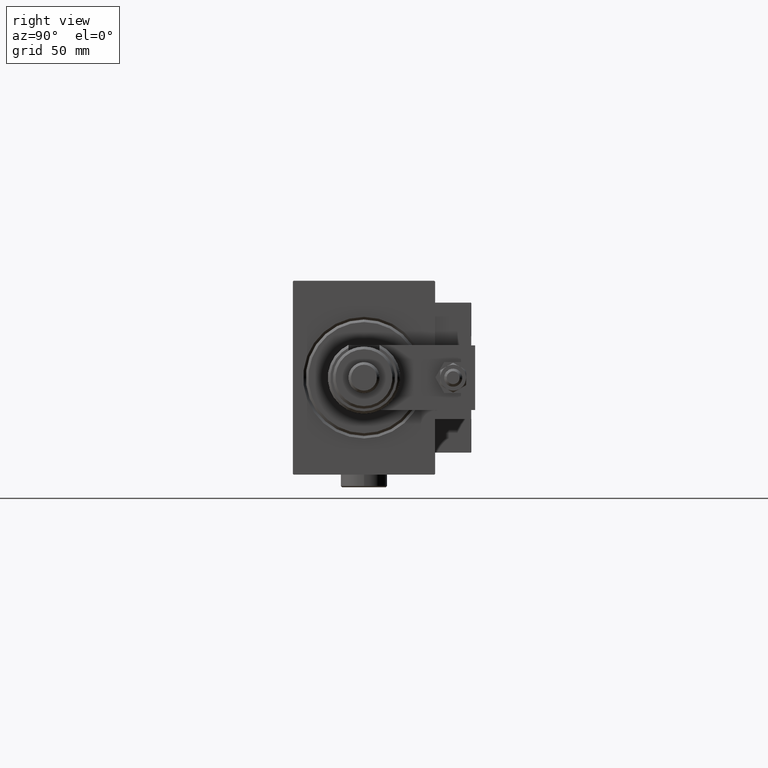
[diagram: clean part render]
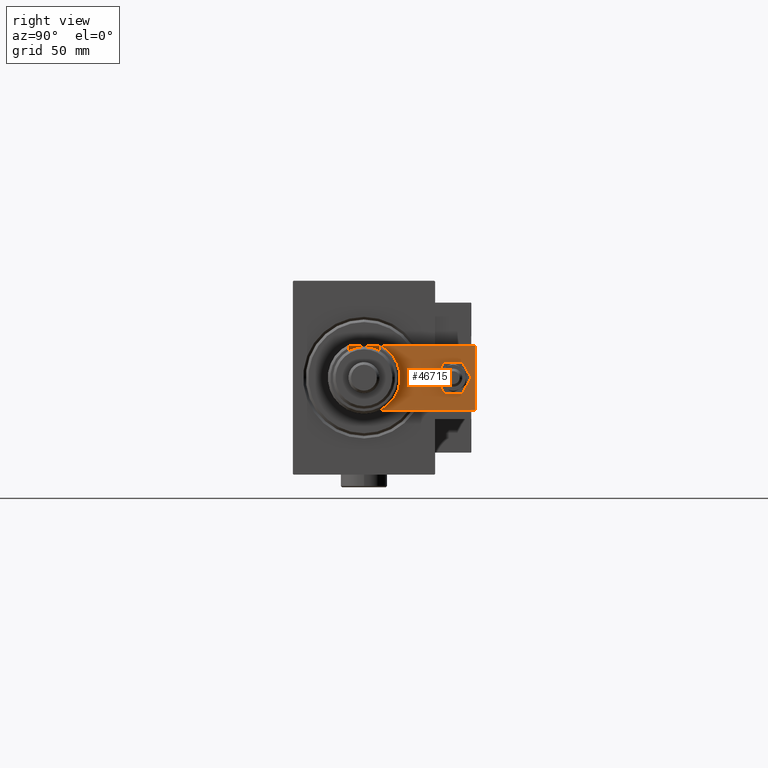
[diagram: same view with one face highlighted and labeled with its STEP entity id]
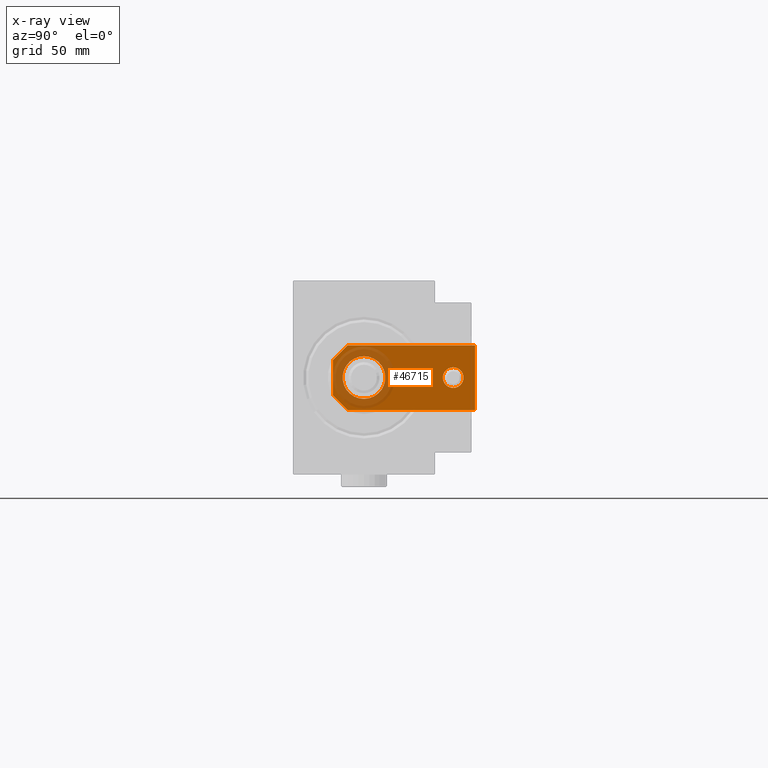
[diagram: x-ray of the same camera — body ghosted, the highlighted face saturated]
A machine part, right view. The second image highlights one B-rep face of the part: STEP entity #46715.
The next image is the same camera in x-ray: the body ghosted, the highlighted face saturated — about 22% of this face is hidden behind the body in this view.
In plain terms, the highlighted planar face has unit normal (1, 0, -0).
Its self-contained STEP definition (entity closure, byte-faithful):
#2661 = EDGE_CURVE ( 'NONE', #19038, #17296, #21105, .T. ) ;
#3235 = LINE ( 'NONE', #19926, #35193 ) ;
#3616 = VERTEX_POINT ( 'NONE', #32717 ) ;
#4510 = AXIS2_PLACEMENT_3D ( 'NONE', #22381, #30873, #39056 ) ;
#4646 = ORIENTED_EDGE ( 'NONE', *, *, #10457, .T. ) ;
#5590 = VECTOR ( 'NONE', #21785, 1000.000000000000114 ) ;
#5646 = CARTESIAN_POINT ( 'NONE',  ( -6.840000000000012292, 4.814824860968089633E-32, 6.000000000000000000 ) ) ;
#6433 = PLANE ( 'NONE',  #15510 ) ;
#6754 = EDGE_CURVE ( 'NONE', #39569, #25874, #20414, .T. ) ;
#7586 = AXIS2_PLACEMENT_3D ( 'NONE', #42441, #8816, #17298 ) ;
#8251 = ORIENTED_EDGE ( 'NONE', *, *, #30478, .F. ) ;
#8568 = EDGE_CURVE ( 'NONE', #3616, #11994, #3235, .T. ) ;
#8816 = DIRECTION ( 'NONE',  ( 0.000000000000000000, 0.000000000000000000, 1.000000000000000000 ) ) ;
#9032 = VECTOR ( 'NONE', #42603, 1000.000000000000000 ) ;
#9033 = EDGE_CURVE ( 'NONE', #27575, #27645, #19546, .T. ) ;
#10321 = EDGE_CURVE ( 'NONE', #27645, #3616, #13842, .T. ) ;
#10429 = ORIENTED_EDGE ( 'NONE', *, *, #9033, .T. ) ;
#10457 = EDGE_CURVE ( 'NONE', #24948, #27575, #19554, .T. ) ;
#11641 = DIRECTION ( 'NONE',  ( 0.000000000000000000, 0.000000000000000000, 1.000000000000000000 ) ) ;
#11903 = CARTESIAN_POINT ( 'NONE',  ( -9.629649721936179265E-32, 11.99999999999999645, 6.000000000000000000 ) ) ;
#11994 = VERTEX_POINT ( 'NONE', #40908 ) ;
#12029 = CARTESIAN_POINT ( 'NONE',  ( -12.49999999999999822, 55.00000000000000000, 6.000000000000000000 ) ) ;
#12367 = ORIENTED_EDGE ( 'NONE', *, *, #42788, .T. ) ;
#12831 = CARTESIAN_POINT ( 'NONE',  ( -12.50000000000000355, 5.660000000000005471, 6.000000000000000000 ) ) ;
#13842 = LINE ( 'NONE', #31352, #5590 ) ;
#14633 = CARTESIAN_POINT ( 'NONE',  ( -12.50000000000000355, 4.814824860968089633E-32, 6.000000000000000000 ) ) ;
#15447 = CARTESIAN_POINT ( 'NONE',  ( 0.000000000000000000, 0.000000000000000000, 6.000000000000000000 ) ) ;
#15510 = AXIS2_PLACEMENT_3D ( 'NONE', #15447, #35420, #52079 ) ;
#15863 = AXIS2_PLACEMENT_3D ( 'NONE', #27284, #43951, #23182 ) ;
#16803 = EDGE_CURVE ( 'NONE', #17296, #19038, #31180, .T. ) ;
#17296 = VERTEX_POINT ( 'NONE', #49159 ) ;
#17298 = DIRECTION ( 'NONE',  ( 1.000000000000000000, 0.000000000000000000, 0.000000000000000000 ) ) ;
#17833 = LINE ( 'NONE', #41040, #43321 ) ;
#17958 = CARTESIAN_POINT ( 'NONE',  ( 6.839999999999998970, 4.814824860968089633E-32, 6.000000000000000000 ) ) ;
#17979 = EDGE_CURVE ( 'NONE', #11994, #36847, #17833, .T. ) ;
#18844 = ORIENTED_EDGE ( 'NONE', *, *, #17979, .T. ) ;
#18850 = CARTESIAN_POINT ( 'NONE',  ( 4.000000000000000888, 46.50000000000000000, 6.000000000000000000 ) ) ;
#19038 = VERTEX_POINT ( 'NONE', #18850 ) ;
#19546 = LINE ( 'NONE', #14633, #9032 ) ;
#19554 = LINE ( 'NONE', #32154, #33554 ) ;
#19822 = FACE_BOUND ( 'NONE', #48788, .T. ) ;
#19926 = CARTESIAN_POINT ( 'NONE',  ( 12.50000000000000355, 4.814824860968089633E-32, 6.000000000000000000 ) ) ;
#20280 = AXIS2_PLACEMENT_3D ( 'NONE', #11903, #11641, #53179 ) ;
#20414 = CIRCLE ( 'NONE', #20280, 8.250000000000000000 ) ;
#20505 = EDGE_LOOP ( 'NONE', ( #12367, #4646, #10429, #39080, #32818, #18844 ) ) ;
#21105 = CIRCLE ( 'NONE', #15863, 4.000000000000000888 ) ;
#21785 = DIRECTION ( 'NONE',  ( 0.7071067811865483499, 0.7071067811865465735, -0.000000000000000000 ) ) ;
#22381 = CARTESIAN_POINT ( 'NONE',  ( -9.629649721936179265E-32, 11.99999999999999645, 6.000000000000000000 ) ) ;
#23127 = DIRECTION ( 'NONE',  ( 0.7071067811865467956, -0.7071067811865483499, 0.000000000000000000 ) ) ;
#23182 = DIRECTION ( 'NONE',  ( 1.000000000000000000, 0.000000000000000000, 0.000000000000000000 ) ) ;
#23292 = DIRECTION ( 'NONE',  ( -1.000000000000000000, 0.000000000000000000, 0.000000000000000000 ) ) ;
#23353 = EDGE_LOOP ( 'NONE', ( #44379, #31771 ) ) ;
#24948 = VERTEX_POINT ( 'NONE', #12831 ) ;
#25874 = VERTEX_POINT ( 'NONE', #35105 ) ;
#27284 = CARTESIAN_POINT ( 'NONE',  ( -1.432611055310774642E-16, 46.50000000000000000, 6.000000000000000000 ) ) ;
#27575 = VERTEX_POINT ( 'NONE', #5646 ) ;
#27645 = VERTEX_POINT ( 'NONE', #17958 ) ;
#28034 = FACE_OUTER_BOUND ( 'NONE', #20505, .T. ) ;
#28096 = CIRCLE ( 'NONE', #4510, 8.250000000000000000 ) ;
#28405 = DIRECTION ( 'NONE',  ( -6.308085367188389994E-17, 1.000000000000000000, 0.000000000000000000 ) ) ;
#30304 = CARTESIAN_POINT ( 'NONE',  ( -12.49999999999999822, 55.00000000000000000, 6.000000000000000000 ) ) ;
#30478 = EDGE_CURVE ( 'NONE', #25874, #39569, #28096, .T. ) ;
#30873 = DIRECTION ( 'NONE',  ( 0.000000000000000000, 0.000000000000000000, 1.000000000000000000 ) ) ;
#31180 = CIRCLE ( 'NONE', #7586, 4.000000000000000888 ) ;
#31352 = CARTESIAN_POINT ( 'NONE',  ( 3.419999999999990603, -3.419999999999999485, 6.000000000000000000 ) ) ;
#31771 = ORIENTED_EDGE ( 'NONE', *, *, #2661, .F. ) ;
#32154 = CARTESIAN_POINT ( 'NONE',  ( -3.420000000000013696, -3.420000000000006146, 6.000000000000000000 ) ) ;
#32717 = CARTESIAN_POINT ( 'NONE',  ( 12.50000000000000355, 5.659999999999991260, 6.000000000000000000 ) ) ;
#32818 = ORIENTED_EDGE ( 'NONE', *, *, #8568, .T. ) ;
#33554 = VECTOR ( 'NONE', #23127, 1000.000000000000000 ) ;
#35105 = CARTESIAN_POINT ( 'NONE',  ( -8.250000000000000000, 11.99999999999999645, 6.000000000000000000 ) ) ;
#35193 = VECTOR ( 'NONE', #28405, 1000.000000000000000 ) ;
#35420 = DIRECTION ( 'NONE',  ( -0.000000000000000000, 0.000000000000000000, 1.000000000000000000 ) ) ;
#36847 = VERTEX_POINT ( 'NONE', #12029 ) ;
#39029 = LINE ( 'NONE', #30304, #52844 ) ;
#39056 = DIRECTION ( 'NONE',  ( 1.000000000000000000, 0.000000000000000000, 0.000000000000000000 ) ) ;
#39080 = ORIENTED_EDGE ( 'NONE', *, *, #10321, .T. ) ;
#39569 = VERTEX_POINT ( 'NONE', #52804 ) ;
#40908 = CARTESIAN_POINT ( 'NONE',  ( 12.50000000000000000, 55.00000000000000000, 6.000000000000000000 ) ) ;
#41040 = CARTESIAN_POINT ( 'NONE',  ( 12.50000000000000000, 55.00000000000000000, 6.000000000000000000 ) ) ;
#42441 = CARTESIAN_POINT ( 'NONE',  ( -1.432611055310774642E-16, 46.50000000000000000, 6.000000000000000000 ) ) ;
#42603 = DIRECTION ( 'NONE',  ( 1.000000000000000000, 0.000000000000000000, 0.000000000000000000 ) ) ;
#42788 = EDGE_CURVE ( 'NONE', #36847, #24948, #39029, .T. ) ;
#43321 = VECTOR ( 'NONE', #23292, 1000.000000000000000 ) ;
#43951 = DIRECTION ( 'NONE',  ( 0.000000000000000000, 0.000000000000000000, 1.000000000000000000 ) ) ;
#44379 = ORIENTED_EDGE ( 'NONE', *, *, #16803, .F. ) ;
#46715 = ADVANCED_FACE ( 'NONE', ( #53165, #28034, #19822 ), #6433, .T. ) ;
#46943 = DIRECTION ( 'NONE',  ( -9.462128050782584375E-17, -1.000000000000000000, 0.000000000000000000 ) ) ;
#48111 = ORIENTED_EDGE ( 'NONE', *, *, #6754, .F. ) ;
#48788 = EDGE_LOOP ( 'NONE', ( #8251, #48111 ) ) ;
#49159 = CARTESIAN_POINT ( 'NONE',  ( -4.000000000000000888, 46.50000000000000000, 6.000000000000000000 ) ) ;
#52079 = DIRECTION ( 'NONE',  ( 1.000000000000000000, 0.000000000000000000, 0.000000000000000000 ) ) ;
#52804 = CARTESIAN_POINT ( 'NONE',  ( 8.250000000000000000, 11.99999999999999822, 6.000000000000000000 ) ) ;
#52844 = VECTOR ( 'NONE', #46943, 1000.000000000000000 ) ;
#53165 = FACE_BOUND ( 'NONE', #23353, .T. ) ;
#53179 = DIRECTION ( 'NONE',  ( 1.000000000000000000, 0.000000000000000000, 0.000000000000000000 ) ) ;